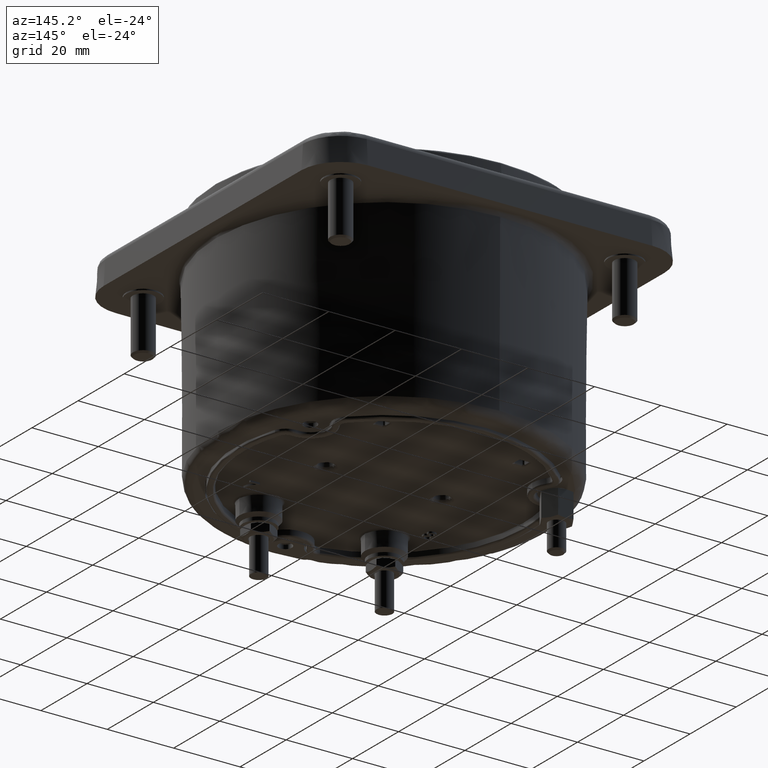
[diagram: clean part render]
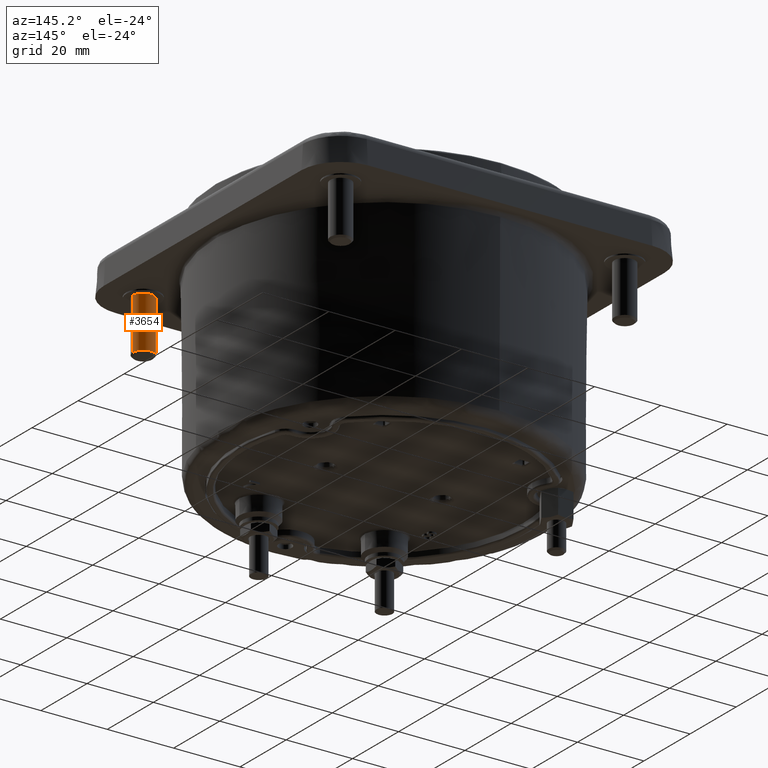
[diagram: same view with one face highlighted and labeled with its STEP entity id]
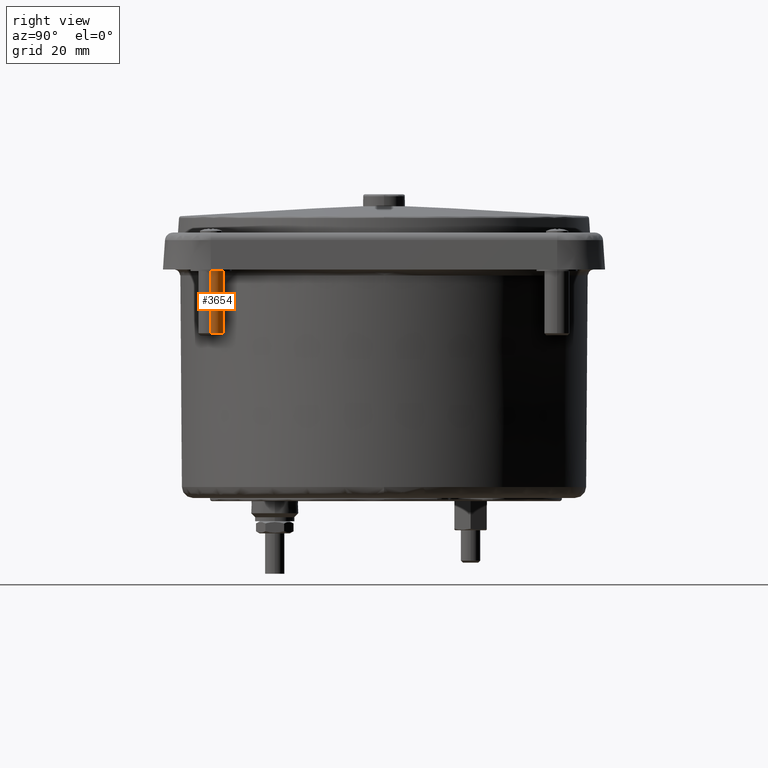
[diagram: same view with one face highlighted and labeled with its STEP entity id]
A machine part, auxiliary view. The second image highlights one B-rep face of the part: STEP entity #3654.
A second angle (right view) of the same face is appended — the face is thin or edge-on in the first view.
In plain terms, the highlighted cylindrical surface (edge-blend (fillet) strip) has radius 3.15 mm, axis along (0, 0, -1).
Its self-contained STEP definition (entity closure, byte-faithful):
#74 = DIRECTION ( 'NONE',  ( -0.000000000000000000, -0.000000000000000000, 1.000000000000000000 ) ) ;
#1349 = CARTESIAN_POINT ( 'NONE',  ( 1.809055119206566919, -1.685039368982401697, 2.055118110236220819 ) ) ;
#1625 = DIRECTION ( 'NONE',  ( -1.000000000000000000, 0.000000000000000000, 0.000000000000000000 ) ) ;
#1634 = DIRECTION ( 'NONE',  ( -1.000000000000000000, 0.000000000000000000, 0.000000000000000000 ) ) ;
#1657 = VECTOR ( 'NONE', #4194, 39.37007874015748143 ) ;
#3319 = ORIENTED_EDGE ( 'NONE', *, *, #16095, .T. ) ;
#3654 = ADVANCED_FACE ( 'NONE', ( #9321 ), #19165, .T. ) ;
#4034 = AXIS2_PLACEMENT_3D ( 'NONE', #16613, #74, #1634 ) ;
#4194 = DIRECTION ( 'NONE',  ( 0.000000000000000000, 0.000000000000000000, -1.000000000000000000 ) ) ;
#4306 = CARTESIAN_POINT ( 'NONE',  ( 1.561023623146635009, -1.685039368982401697, 1.448818897637795367 ) ) ;
#4495 = CARTESIAN_POINT ( 'NONE',  ( 1.561023623143574790, -1.685039368982401697, 2.295275590551181022 ) ) ;
#4812 = CARTESIAN_POINT ( 'NONE',  ( 1.685039371175070855, -1.685039368982401697, 2.055118110236220819 ) ) ;
#5383 = ORIENTED_EDGE ( 'NONE', *, *, #13558, .T. ) ;
#6027 = DIRECTION ( 'NONE',  ( -1.000000000000000000, 0.000000000000000000, 0.000000000000000000 ) ) ;
#6852 = CIRCLE ( 'NONE', #19073, 0.1240157480314960647 ) ;
#7589 = CARTESIAN_POINT ( 'NONE',  ( 1.809055119206566919, -1.685039368982401697, 2.295275590551181022 ) ) ;
#8574 = AXIS2_PLACEMENT_3D ( 'NONE', #10968, #10865, #6027 ) ;
#9321 = FACE_OUTER_BOUND ( 'NONE', #15487, .T. ) ;
#9499 = CARTESIAN_POINT ( 'NONE',  ( 1.809055119203506701, -1.685039368982401697, 1.448818897637795367 ) ) ;
#9991 = EDGE_CURVE ( 'NONE', #12525, #16061, #17277, .T. ) ;
#10865 = DIRECTION ( 'NONE',  ( 0.000000000000000000, 0.000000000000000000, -1.000000000000000000 ) ) ;
#10967 = ORIENTED_EDGE ( 'NONE', *, *, #9991, .T. ) ;
#10968 = CARTESIAN_POINT ( 'NONE',  ( 1.685039371175070855, -1.685039368982401697, 2.295275590551181022 ) ) ;
#11266 = LINE ( 'NONE', #4495, #12645 ) ;
#12525 = VERTEX_POINT ( 'NONE', #9499 ) ;
#12645 = VECTOR ( 'NONE', #16398, 39.37007874015748143 ) ;
#13278 = VERTEX_POINT ( 'NONE', #17889 ) ;
#13558 = EDGE_CURVE ( 'NONE', #13278, #17950, #6852, .T. ) ;
#14862 = DIRECTION ( 'NONE',  ( 0.000000000000000000, 0.000000000000000000, -1.000000000000000000 ) ) ;
#15487 = EDGE_LOOP ( 'NONE', ( #5383, #3319, #10967, #15736 ) ) ;
#15736 = ORIENTED_EDGE ( 'NONE', *, *, #18200, .F. ) ;
#16061 = VERTEX_POINT ( 'NONE', #4306 ) ;
#16095 = EDGE_CURVE ( 'NONE', #17950, #12525, #17630, .T. ) ;
#16398 = DIRECTION ( 'NONE',  ( 0.000000000000000000, 0.000000000000000000, -1.000000000000000000 ) ) ;
#16613 = CARTESIAN_POINT ( 'NONE',  ( 1.685039371175070855, -1.685039368982401697, 1.448818897637795367 ) ) ;
#17277 = CIRCLE ( 'NONE', #4034, 0.1240157480314960647 ) ;
#17630 = LINE ( 'NONE', #7589, #1657 ) ;
#17889 = CARTESIAN_POINT ( 'NONE',  ( 1.561023623143574790, -1.685039368982401697, 2.055118110236220819 ) ) ;
#17950 = VERTEX_POINT ( 'NONE', #1349 ) ;
#18200 = EDGE_CURVE ( 'NONE', #13278, #16061, #11266, .T. ) ;
#19073 = AXIS2_PLACEMENT_3D ( 'NONE', #4812, #14862, #1625 ) ;
#19165 = CYLINDRICAL_SURFACE ( 'NONE', #8574, 0.1240157480314960647 ) ;